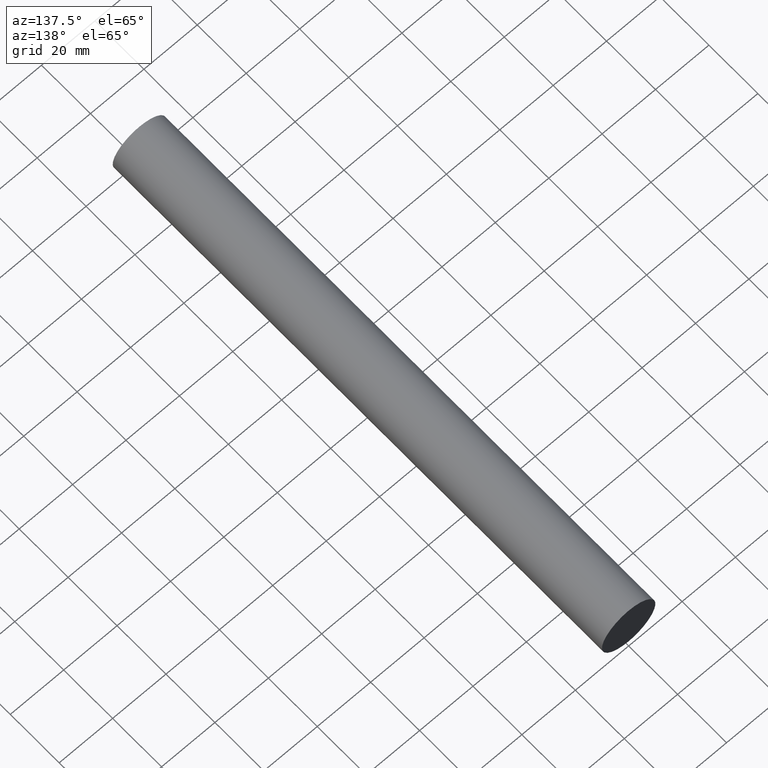
[diagram: clean part render]
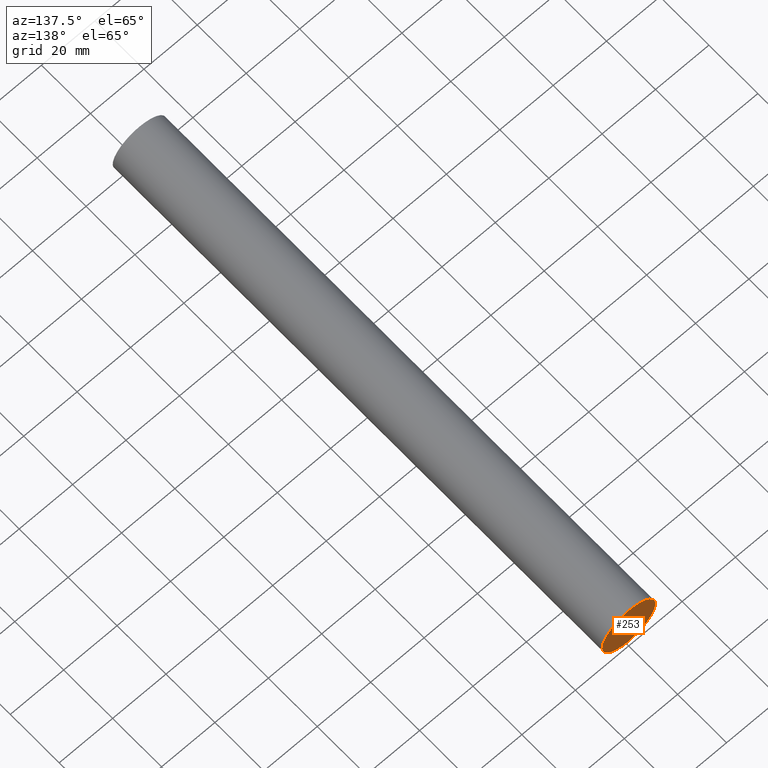
[diagram: same view with one face highlighted and labeled with its STEP entity id]
A machine part, auxiliary view. The second image highlights one B-rep face of the part: STEP entity #253.
In plain terms, the highlighted face is a freeform B-spline surface patch.
Its self-contained STEP definition (entity closure, byte-faithful):
#85=CARTESIAN_POINT('',(-9.930095263611026,200.0,1.180342346783272));
#86=VERTEX_POINT('',#85);
#92=CARTESIAN_POINT('',(0.0,200.0,-10.0));
#93=VERTEX_POINT('',#92);
#94=CARTESIAN_POINT('',(-9.930095263611026,200.000000000000060,1.180342346783272));
#95=CARTESIAN_POINT('',(-10.0,199.999999999999970,0.592241196737069));
#96=CARTESIAN_POINT('',(-10.0,200.0,0.0));
#97=CARTESIAN_POINT('',(-10.000000000000002,200.0,-10.000000000000002));
#98=CARTESIAN_POINT('',(0.0,200.0,-10.0));
#106=(BOUNDED_CURVE()B_SPLINE_CURVE(2,(#94,#95,#96,#97,#98),.UNSPECIFIED.,.F.,.U.)B_SPLINE_CURVE_WITH_KNOTS((3,2,3),(0.229562473508303,0.250000000000000,0.500000000000000),.UNSPECIFIED.)CURVE()GEOMETRIC_REPRESENTATION_ITEM()RATIONAL_B_SPLINE_CURVE((0.956026754173496,0.976055948325046,1.0,0.707106781186548,1.0))REPRESENTATION_ITEM(''));
#107=EDGE_CURVE('',#86,#93,#106,.T.);
#109=CARTESIAN_POINT('',(9.981347984206206,200.0,-0.610485395552353));
#110=VERTEX_POINT('',#109);
#111=CARTESIAN_POINT('',(0.0,200.0,-10.0));
#112=CARTESIAN_POINT('',(9.407060668672177,200.000000000000060,-10.000000000000002));
#113=CARTESIAN_POINT('',(9.981347984206206,199.999999999999970,-0.610485395552353));
#121=(BOUNDED_CURVE()B_SPLINE_CURVE(2,(#111,#112,#113),.UNSPECIFIED.,.F.,.U.)B_SPLINE_CURVE_WITH_KNOTS((3,3),(0.500000000000000,0.739332962234924),.UNSPECIFIED.)CURVE()GEOMETRIC_REPRESENTATION_ITEM()RATIONAL_B_SPLINE_CURVE((1.0,0.719603993291419,0.976072041658104))REPRESENTATION_ITEM(''));
#122=EDGE_CURVE('',#93,#110,#121,.T.);
#196=CARTESIAN_POINT('',(0.0,200.0,10.0));
#197=VERTEX_POINT('',#196);
#198=CARTESIAN_POINT('',(9.981347984206206,200.000000000000060,-0.610485395552353));
#199=CARTESIAN_POINT('',(9.999999999999998,200.0,-0.305527633190244));
#200=CARTESIAN_POINT('',(10.0,200.0,0.0));
#201=CARTESIAN_POINT('',(10.000000000000002,200.0,10.000000000000002));
#202=CARTESIAN_POINT('',(0.0,200.0,10.0));
#210=(BOUNDED_CURVE()B_SPLINE_CURVE(2,(#198,#199,#200,#201,#202),.UNSPECIFIED.,.F.,.U.)B_SPLINE_CURVE_WITH_KNOTS((3,2,3),(0.739332962234923,0.750000000000000,1.0),.UNSPECIFIED.)CURVE()GEOMETRIC_REPRESENTATION_ITEM()RATIONAL_B_SPLINE_CURVE((0.976072041658102,0.987502787895127,1.0,0.707106781186548,1.0))REPRESENTATION_ITEM(''));
#211=EDGE_CURVE('',#110,#197,#210,.T.);
#213=CARTESIAN_POINT('',(0.0,200.0,10.0));
#214=CARTESIAN_POINT('',(-8.881745259125120,199.999999999999970,9.999999999999998));
#215=CARTESIAN_POINT('',(-9.930095263611026,200.0,1.180342346783272));
#223=(BOUNDED_CURVE()B_SPLINE_CURVE(2,(#213,#214,#215),.UNSPECIFIED.,.F.,.U.)B_SPLINE_CURVE_WITH_KNOTS((3,3),(0.0,0.229562473508302),.UNSPECIFIED.)CURVE()GEOMETRIC_REPRESENTATION_ITEM()RATIONAL_B_SPLINE_CURVE((1.0,0.731050832861502,0.956026754173495))REPRESENTATION_ITEM(''));
#224=EDGE_CURVE('',#197,#86,#223,.T.);
#242=CARTESIAN_POINT('',(-10.998818645354859,200.0,10.998999961236120));
#243=CARTESIAN_POINT('',(10.998756596919650,200.0,10.998999961236120));
#244=CARTESIAN_POINT('',(-10.998818645354859,200.0,-10.999000497677921));
#245=CARTESIAN_POINT('',(10.998756596919650,200.0,-10.999000497677921));
#246=B_SPLINE_SURFACE_WITH_KNOTS('',1,1,((#242,#244),(#243,#245)),.UNSPECIFIED.,.F.,.F.,.U.,(2,2),(2,2),(0.0,21.997575242274522),(0.0,21.998000458914039),.UNSPECIFIED.);
#247=ORIENTED_EDGE('',*,*,#211,.F.);
#248=ORIENTED_EDGE('',*,*,#122,.F.);
#249=ORIENTED_EDGE('',*,*,#107,.F.);
#250=ORIENTED_EDGE('',*,*,#224,.F.);
#251=EDGE_LOOP('',(#247,#248,#249,#250));
#252=FACE_OUTER_BOUND('',#251,.T.);
#253=ADVANCED_FACE('',(#252),#246,.T.);